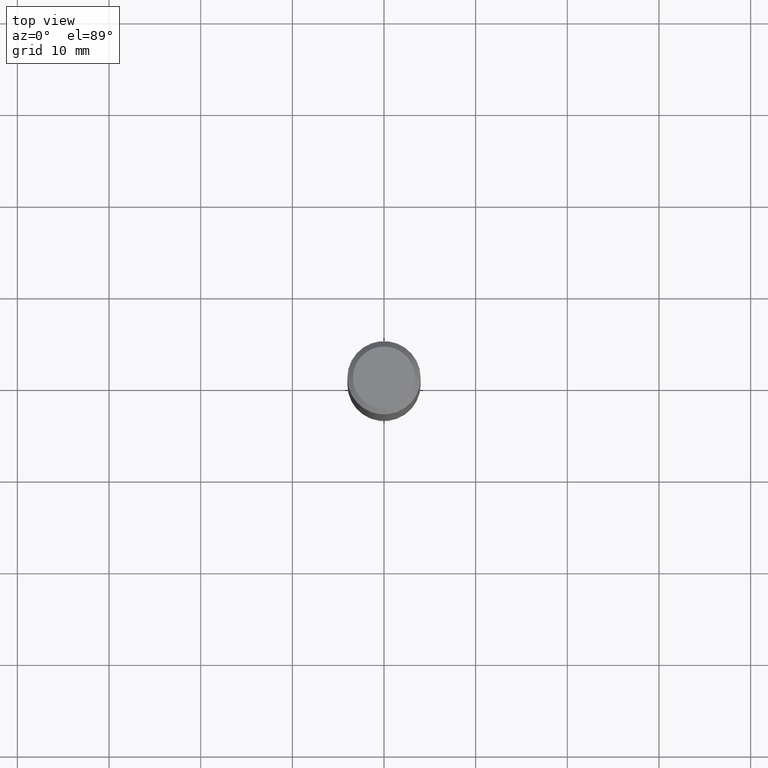
[diagram: clean part render]
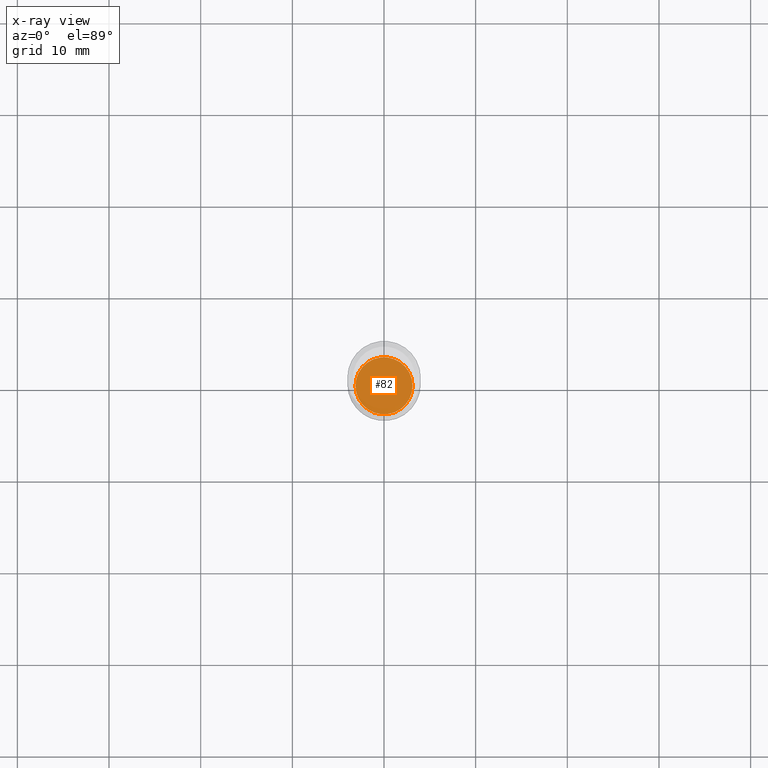
[diagram: x-ray — body ghosted, one internal face saturated and labeled with its STEP entity id]
A machine part, top view, then the same camera in x-ray: the body is ghosted and one INTERNAL B-rep face — a face not visible from any outside direction — is saturated and labeled: STEP entity #82.
In plain terms, the highlighted planar face has unit normal (-0, 0, 1).
Its self-contained STEP definition (entity closure, byte-faithful):
#24 = DIRECTION ( 'NONE',  ( 1.000000000000000000, -6.982962677686265922E-15, 4.876176775795935793E-29 ) ) ;
#32 = CARTESIAN_POINT ( 'NONE',  ( 0.1225500000000000062, -7.900523973534267362E-15, -2.017700000000000049 ) ) ;
#73 = CARTESIAN_POINT ( 'NONE',  ( 4.934222410239750967E-29, -7.044761897383814758E-15, -2.017700000000000049 ) ) ;
#82 = ADVANCED_FACE ( 'NONE', ( #443 ), #419, .F. ) ;
#100 = CIRCLE ( 'NONE', #445, 0.1225500000000000062 ) ;
#136 = EDGE_CURVE ( 'NONE', #243, #459, #100, .T. ) ;
#141 = CARTESIAN_POINT ( 'NONE',  ( 4.934222410239750967E-29, -7.044761897383814758E-15, -2.017700000000000049 ) ) ;
#164 = ORIENTED_EDGE ( 'NONE', *, *, #355, .F. ) ;
#189 = CIRCLE ( 'NONE', #290, 0.1225500000000000062 ) ;
#215 = DIRECTION ( 'NONE',  ( 1.000000000000000000, -6.982962677686268288E-15, 0.000000000000000000 ) ) ;
#243 = VERTEX_POINT ( 'NONE', #394 ) ;
#247 = DIRECTION ( 'NONE',  ( 1.000000000000000000, -6.982962677686268288E-15, 0.000000000000000000 ) ) ;
#290 = AXIS2_PLACEMENT_3D ( 'NONE', #444, #330, #215 ) ;
#330 = DIRECTION ( 'NONE',  ( -2.445468806185136597E-29, 3.491481338843145583E-15, 1.000000000000000000 ) ) ;
#348 = DIRECTION ( 'NONE',  ( -2.445468806185136597E-29, 3.491481338843145583E-15, 1.000000000000000000 ) ) ;
#349 = EDGE_LOOP ( 'NONE', ( #164, #397 ) ) ;
#355 = EDGE_CURVE ( 'NONE', #459, #243, #189, .T. ) ;
#394 = CARTESIAN_POINT ( 'NONE',  ( -0.1225500000000000062, -6.171342547535699651E-15, -2.017700000000000049 ) ) ;
#397 = ORIENTED_EDGE ( 'NONE', *, *, #136, .F. ) ;
#419 = PLANE ( 'NONE',  #435 ) ;
#435 = AXIS2_PLACEMENT_3D ( 'NONE', #141, #452, #24 ) ;
#443 = FACE_OUTER_BOUND ( 'NONE', #349, .T. ) ;
#444 = CARTESIAN_POINT ( 'NONE',  ( 4.934222410239750967E-29, -7.044761897383814758E-15, -2.017700000000000049 ) ) ;
#445 = AXIS2_PLACEMENT_3D ( 'NONE', #73, #348, #247 ) ;
#452 = DIRECTION ( 'NONE',  ( -2.438088387897960049E-29, 3.491481338843145188E-15, 1.000000000000000000 ) ) ;
#459 = VERTEX_POINT ( 'NONE', #32 ) ;